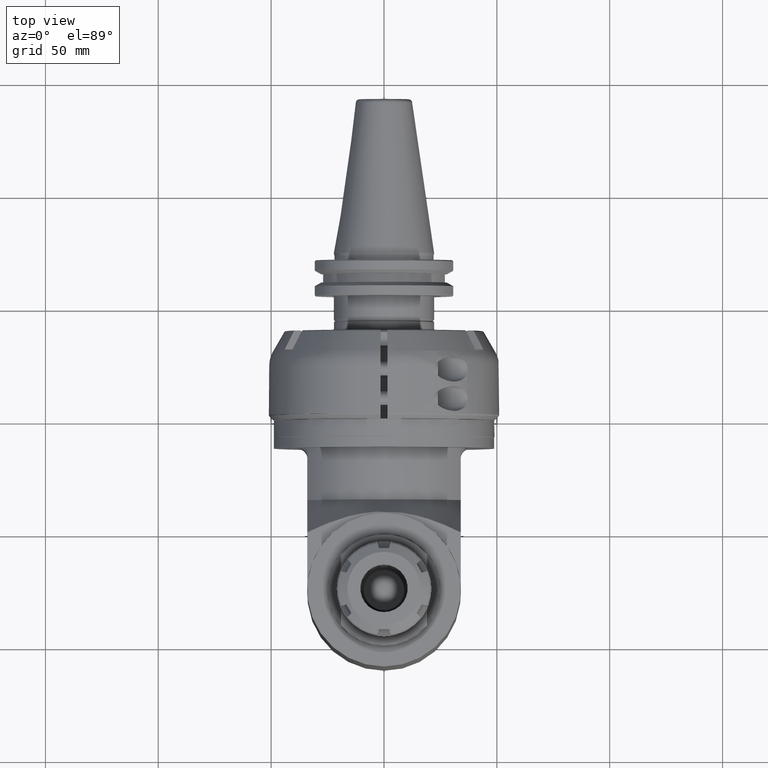
[diagram: clean part render]
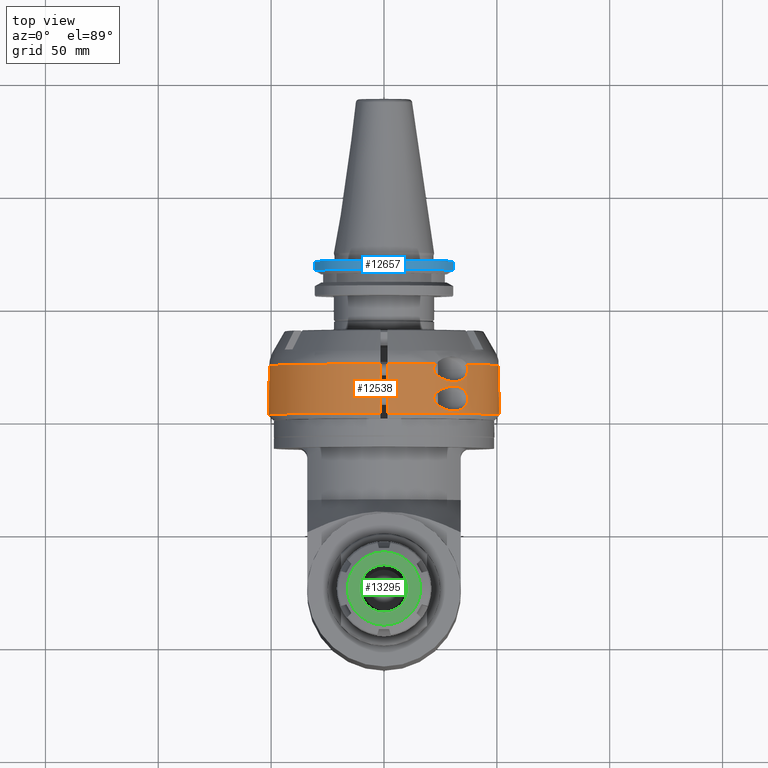
[diagram: same view with three faces highlighted in distinct colors, each labeled with its STEP entity id]
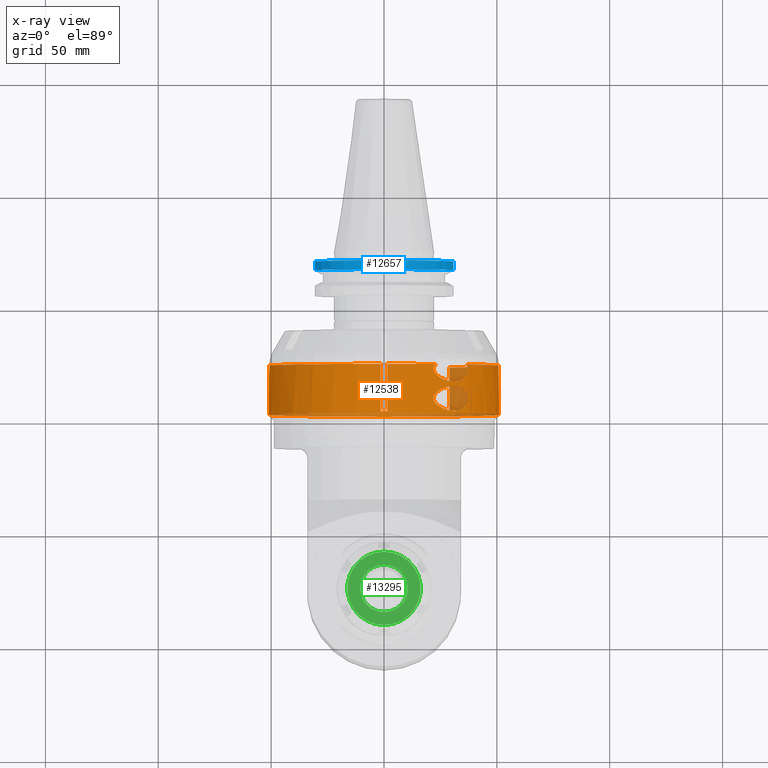
[diagram: x-ray of the same camera — body ghosted, the three highlighted faces saturated]
A machine part, top view with three faces highlighted in distinct colors.
The next image is the same camera in x-ray (body ghosted, the three faces saturated) — at least one of them is partly hidden behind the body in this view.
Their STEP definitions:

[orange] entity #12538 — the highlighted cylindrical surface (partial cylindrical patch) has radius 51 mm, axis along (0, -1, 0).
#115=ELLIPSE('',#13457,144.249783362042,51.);
#116=ELLIPSE('',#13458,144.249783362042,51.);
#207=FACE_BOUND('',#2037,.T.);
#500=B_SPLINE_CURVE_WITH_KNOTS('',3,(#19334,#19335,#19336,#19337,#19338,
#19339),.UNSPECIFIED.,.F.,.F.,(4,2,4),(-0.220144328873593,-0.201175489980687,
0.),.UNSPECIFIED.);
#501=B_SPLINE_CURVE_WITH_KNOTS('',3,(#19340,#19341,#19342,#19343,#19344,
#19345,#19346,#19347,#19348,#19349,#19350,#19351,#19352,#19353,#19354,#19355,
#19356,#19357,#19358,#19359,#19360,#19361,#19362,#19363,#19364,#19365),
 .UNSPECIFIED.,.F.,.F.,(4,2,2,2,2,2,2,2,2,2,2,2,4),(0.,0.201175489980687,
0.402350979961374,0.726790310303929,1.05122964064648,1.44743687444551,1.84364410824453,
2.06341028648597,2.17329337560669,2.28317646472742,2.39305955384814,2.50294264296886,
2.52975105249028),.UNSPECIFIED.);
#502=B_SPLINE_CURVE_WITH_KNOTS('',3,(#19369,#19370,#19371,#19372,#19373,
#19374,#19375,#19376,#19377,#19378,#19379,#19380,#19381,#19382,#19383,#19384,
#19385,#19386,#19387,#19388,#19389,#19390,#19391),.UNSPECIFIED.,.F.,.F.,
(4,2,2,2,2,3,2,2,2,2,4),(-1.23194682408093,-0.835739590281914,-0.439532356482893,
-0.219766178241447,-0.109883089120723,0.,0.109883089120723,0.219766178241446,
0.439532356482894,0.835739590281914,1.23194682408093),.UNSPECIFIED.);
#503=B_SPLINE_CURVE_WITH_KNOTS('',3,(#19392,#19393,#19394,#19395,#19396,
#19397,#19398,#19399,#19400,#19401,#19402,#19403,#19404,#19405,#19406,#19407,
#19408,#19409),.UNSPECIFIED.,.F.,.F.,(4,2,2,2,2,2,2,2,4),(1.23194682408093,
1.55638615442349,1.88082548476604,2.08200097474673,2.28317646472742,2.4843519547081,
2.68552744468879,3.00996677503135,3.3344061053739),.UNSPECIFIED.);
#996=CYLINDRICAL_SURFACE('',#13455,51.);
#1228=FACE_OUTER_BOUND('',#2036,.T.);
#2036=EDGE_LOOP('',(#8654,#8655,#8656,#8657,#8658,#8659,#8660,#8661,#8662,
#8663,#8664,#8665,#8666,#8667));
#2037=EDGE_LOOP('',(#8668,#8669));
#2987=CIRCLE('',#13453,51.);
#2988=CIRCLE('',#13454,51.);
#2989=CIRCLE('',#13456,51.);
#2990=CIRCLE('',#13459,51.);
#2991=CIRCLE('',#13460,51.);
#2992=CIRCLE('',#13461,51.);
#3722=LINE('',#19060,#4545);
#3724=LINE('',#19064,#4547);
#3741=LINE('',#19330,#4564);
#3742=LINE('',#19366,#4565);
#4545=VECTOR('',#15022,19.16025403784);
#4547=VECTOR('',#15024,19.16025403784);
#4564=VECTOR('',#15139,21.74606325158);
#4565=VECTOR('',#15144,21.74606856517);
#5373=VERTEX_POINT('',#19046);
#5374=VERTEX_POINT('',#19059);
#5375=VERTEX_POINT('',#19061);
#5376=VERTEX_POINT('',#19063);
#5419=VERTEX_POINT('',#19286);
#5420=VERTEX_POINT('',#19295);
#5421=VERTEX_POINT('',#19297);
#5422=VERTEX_POINT('',#19320);
#5423=VERTEX_POINT('',#19321);
#5424=VERTEX_POINT('',#19323);
#5425=VERTEX_POINT('',#19325);
#5426=VERTEX_POINT('',#19327);
#5427=VERTEX_POINT('',#19329);
#5428=VERTEX_POINT('',#19333);
#5429=VERTEX_POINT('',#19367);
#5430=VERTEX_POINT('',#19368);
#6639=EDGE_CURVE('',#5374,#5373,#3722,.T.);
#6641=EDGE_CURVE('',#5376,#5375,#3724,.T.);
#6700=EDGE_CURVE('',#5419,#5420,#2987,.T.);
#6702=EDGE_CURVE('',#5421,#5373,#2988,.T.);
#6703=EDGE_CURVE('',#5422,#5423,#2989,.T.);
#6704=EDGE_CURVE('',#5424,#5422,#115,.T.);
#6705=EDGE_CURVE('',#5425,#5424,#116,.T.);
#6706=EDGE_CURVE('',#5426,#5425,#2990,.T.);
#6707=EDGE_CURVE('',#5426,#5427,#3741,.T.);
#6708=EDGE_CURVE('',#5376,#5427,#2991,.T.);
#6709=EDGE_CURVE('',#5374,#5375,#2992,.T.);
#6710=EDGE_CURVE('',#5421,#5428,#500,.T.);
#6711=EDGE_CURVE('',#5428,#5420,#501,.T.);
#6712=EDGE_CURVE('',#5419,#5423,#3742,.T.);
#6713=EDGE_CURVE('',#5429,#5430,#502,.T.);
#6714=EDGE_CURVE('',#5430,#5429,#503,.T.);
#8654=ORIENTED_EDGE('',*,*,#6703,.F.);
#8655=ORIENTED_EDGE('',*,*,#6704,.F.);
#8656=ORIENTED_EDGE('',*,*,#6705,.F.);
#8657=ORIENTED_EDGE('',*,*,#6706,.F.);
#8658=ORIENTED_EDGE('',*,*,#6707,.T.);
#8659=ORIENTED_EDGE('',*,*,#6708,.F.);
#8660=ORIENTED_EDGE('',*,*,#6641,.T.);
#8661=ORIENTED_EDGE('',*,*,#6709,.F.);
#8662=ORIENTED_EDGE('',*,*,#6639,.T.);
#8663=ORIENTED_EDGE('',*,*,#6702,.F.);
#8664=ORIENTED_EDGE('',*,*,#6710,.T.);
#8665=ORIENTED_EDGE('',*,*,#6711,.T.);
#8666=ORIENTED_EDGE('',*,*,#6700,.F.);
#8667=ORIENTED_EDGE('',*,*,#6712,.T.);
#8668=ORIENTED_EDGE('',*,*,#6713,.T.);
#8669=ORIENTED_EDGE('',*,*,#6714,.T.);
#12538=ADVANCED_FACE('',(#1228,#207),#996,.T.);
#13453=AXIS2_PLACEMENT_3D('',#19296,#15125,#15126);
#13454=AXIS2_PLACEMENT_3D('',#19318,#15127,#15128);
#13455=AXIS2_PLACEMENT_3D('',#19319,#15129,#15130);
#13456=AXIS2_PLACEMENT_3D('',#19322,#15131,#15132);
#13457=AXIS2_PLACEMENT_3D('',#19324,#15133,#15134);
#13458=AXIS2_PLACEMENT_3D('',#19326,#15135,#15136);
#13459=AXIS2_PLACEMENT_3D('',#19328,#15137,#15138);
#13460=AXIS2_PLACEMENT_3D('',#19331,#15140,#15141);
#13461=AXIS2_PLACEMENT_3D('',#19332,#15142,#15143);
#15022=DIRECTION('',(0.,1.,0.));
#15024=DIRECTION('',(0.,-1.,0.));
#15125=DIRECTION('center_axis',(0.,1.,0.));
#15126=DIRECTION('ref_axis',(0.0294117647058804,0.,0.999567380468613));
#15127=DIRECTION('center_axis',(0.,1.,0.));
#15128=DIRECTION('ref_axis',(0.719066469693323,0.,0.694941301235422));
#15129=DIRECTION('center_axis',(0.,-1.,0.));
#15130=DIRECTION('ref_axis',(1.4663926773559E-10,0.,-1.));
#15131=DIRECTION('center_axis',(0.,-1.,0.));
#15132=DIRECTION('ref_axis',(0.999826388474475,0.,0.0186331132687895));
#15133=DIRECTION('center_axis',(0.612372435695813,-0.353553390593307,-0.707106781186515));
#15134=DIRECTION('ref_axis',(-0.23145502494317,-0.935414346693472,0.267261241912441));
#15135=DIRECTION('center_axis',(0.612372435695813,-0.353553390593307,0.707106781186515));
#15136=DIRECTION('ref_axis',(0.23145502494317,0.935414346693472,0.267261241912441));
#15137=DIRECTION('center_axis',(0.,-1.,0.));
#15138=DIRECTION('ref_axis',(0.,0.,-1.));
#15139=DIRECTION('',(4.970251645951E-10,1.,1.462479987387E-11));
#15140=DIRECTION('center_axis',(0.,1.,0.));
#15141=DIRECTION('ref_axis',(-0.567273574176089,0.,-0.823529411764684));
#15142=DIRECTION('center_axis',(0.,1.,0.));
#15143=DIRECTION('ref_axis',(0.,0.,-1.));
#15144=DIRECTION('',(1.273469652131E-9,-1.,-3.747115976057E-11));
#19046=CARTESIAN_POINT('',(28.93095228298,24.16025403784,-42.));
#19059=CARTESIAN_POINT('',(28.93095228298,5.,-42.));
#19060=CARTESIAN_POINT('',(28.93095228298,5.,-42.));
#19061=CARTESIAN_POINT('',(-28.93095228298,5.,-42.));
#19063=CARTESIAN_POINT('',(-28.93095228298,24.16025403784,-42.));
#19064=CARTESIAN_POINT('',(-28.93095228298,24.16025403784,-42.));
#19286=CARTESIAN_POINT('',(1.49999997309681,24.16025403784,50.9779364046901));
#19295=CARTESIAN_POINT('',(22.92311419183,24.16025403784,45.55799420242));
#19296=CARTESIAN_POINT('Origin',(0.,24.16025403784,0.));
#19297=CARTESIAN_POINT('',(36.67238995436,24.16025403784,35.44200636301));
#19318=CARTESIAN_POINT('Origin',(0.,24.16025403784,0.));
#19319=CARTESIAN_POINT('Origin',(0.,31.,0.));
#19320=CARTESIAN_POINT('',(50.9911458122,2.41421356236,0.9502887767138));
#19321=CARTESIAN_POINT('',(1.49999998660699,2.41421355534875,50.9779364042926));
#19322=CARTESIAN_POINT('Origin',(0.,2.41421356237,0.));
#19323=CARTESIAN_POINT('',(51.,4.33012701892,0.));
#19324=CARTESIAN_POINT('Origin',(0.,-84.0044641670873,0.));
#19325=CARTESIAN_POINT('',(50.9911458122,2.41421356237,-0.9502887767115));
#19326=CARTESIAN_POINT('Origin',(0.,-84.0044641670895,0.));
#19327=CARTESIAN_POINT('',(-1.49999998564002,2.41421355484347,50.9779364043204));
#19328=CARTESIAN_POINT('Origin',(0.,2.41421356237,0.));
#19329=CARTESIAN_POINT('',(-1.49999998023586,24.1602540534303,50.9779364044794));
#19330=CARTESIAN_POINT('',(-1.49999997128,2.41420614677,50.97793640474));
#19331=CARTESIAN_POINT('Origin',(0.,24.16025403784,0.));
#19332=CARTESIAN_POINT('Origin',(0.,5.,0.));
#19333=CARTESIAN_POINT('',(37.094473715245,22.,35.0000002827));
#19334=CARTESIAN_POINT('Ctrl Pts',(36.672389954383,24.1602540378615,35.4420063629821));
#19335=CARTESIAN_POINT('Ctrl Pts',(36.6960098703128,24.1030307589119,35.4175664721138));
#19336=CARTESIAN_POINT('Ctrl Pts',(36.7187524665262,24.0451285760376,35.3939854762316));
#19337=CARTESIAN_POINT('Ctrl Pts',(36.9720249281091,23.365962882206,35.1309085087689));
#19338=CARTESIAN_POINT('Ctrl Pts',(37.094473715245,22.6705849666023,35.0000002827));
#19339=CARTESIAN_POINT('Ctrl Pts',(37.094473715245,22.,35.0000002827));
#19340=CARTESIAN_POINT('Ctrl Pts',(37.094473715245,22.,35.0000002827));
#19341=CARTESIAN_POINT('Ctrl Pts',(37.094473715245,21.3294150333977,35.0000002827));
#19342=CARTESIAN_POINT('Ctrl Pts',(36.9720249281091,20.634037117794,35.1309085087689));
#19343=CARTESIAN_POINT('Ctrl Pts',(36.509126684777,19.3927469884163,35.611726144206));
#19344=CARTESIAN_POINT('Ctrl Pts',(36.1687494919773,18.8460087579151,35.9595700839234));
#19345=CARTESIAN_POINT('Ctrl Pts',(35.2033968586434,17.735791859391,36.9109847334653));
#19346=CARTESIAN_POINT('Ctrl Pts',(34.4409934800641,17.2408985110096,37.6305186458188));
#19347=CARTESIAN_POINT('Ctrl Pts',(32.7670730175023,16.6228361137413,39.0967633186736));
#19348=CARTESIAN_POINT('Ctrl Pts',(31.8547771083538,16.5,39.8427250661917));
#19349=CARTESIAN_POINT('Ctrl Pts',(29.9471832487812,16.5,41.3026686740521));
#19350=CARTESIAN_POINT('Ctrl Pts',(28.778013547493,16.6813594560049,42.1275628033903));
#19351=CARTESIAN_POINT('Ctrl Pts',(26.456979520871,17.3971650946717,43.6226298537565));
#19352=CARTESIAN_POINT('Ctrl Pts',(25.3037695427295,17.923954492565,44.2943690865695));
#19353=CARTESIAN_POINT('Ctrl Pts',(23.7624895598246,18.9924338611569,45.1302050030023));
#19354=CARTESIAN_POINT('Ctrl Pts',(23.1928172782629,19.474810450432,45.4238805293447));
#19355=CARTESIAN_POINT('Ctrl Pts',(22.5411184273514,20.3289480905375,45.7488459255632));
#19356=CARTESIAN_POINT('Ctrl Pts',(22.3578474169696,20.6350884897769,45.8382767855729));
#19357=CARTESIAN_POINT('Ctrl Pts',(22.0986788135919,21.2875037271628,45.9637780827712));
#19358=CARTESIAN_POINT('Ctrl Pts',(22.0227149550549,21.6337230362643,46.0000002827));
#19359=CARTESIAN_POINT('Ctrl Pts',(22.0227149550549,22.3662769637357,46.0000002827));
#19360=CARTESIAN_POINT('Ctrl Pts',(22.0986788135919,22.7124962728372,45.9637780827712));
#19361=CARTESIAN_POINT('Ctrl Pts',(22.3578474169696,23.3649115102231,45.8382767855729));
#19362=CARTESIAN_POINT('Ctrl Pts',(22.5411184273514,23.6710519094625,45.7488459255632));
#19363=CARTESIAN_POINT('Ctrl Pts',(22.8113501597235,24.0252263780027,45.6140966286168));
#19364=CARTESIAN_POINT('Ctrl Pts',(22.8663661688419,24.0933991389679,45.5865477292858));
#19365=CARTESIAN_POINT('Ctrl Pts',(22.9231141918306,24.1602540378421,45.5579942024262));
#19366=CARTESIAN_POINT('',(1.499999945521,24.16027520978,50.9779364055));
#19367=CARTESIAN_POINT('',(30.99596711028,3.5,40.5000002827));
#19368=CARTESIAN_POINT('',(30.9959671102758,14.5,40.5000002827));
#19369=CARTESIAN_POINT('Ctrl Pts',(30.9959671102758,3.5,40.5000002827));
#19370=CARTESIAN_POINT('Ctrl Pts',(29.9471832487812,3.5,41.3026686740521));
#19371=CARTESIAN_POINT('Ctrl Pts',(28.778013547493,3.68135945600488,42.1275628033903));
#19372=CARTESIAN_POINT('Ctrl Pts',(26.456979520871,4.39716509467172,43.6226298537565));
#19373=CARTESIAN_POINT('Ctrl Pts',(25.3037695427295,4.92395449256504,44.2943690865695));
#19374=CARTESIAN_POINT('Ctrl Pts',(23.7624895598246,5.99243386115685,45.1302050030023));
#19375=CARTESIAN_POINT('Ctrl Pts',(23.1928172782629,6.47481045043198,45.4238805293447));
#19376=CARTESIAN_POINT('Ctrl Pts',(22.5411184273514,7.32894809053751,45.7488459255632));
#19377=CARTESIAN_POINT('Ctrl Pts',(22.3578474169696,7.63508848977687,45.8382767855729));
#19378=CARTESIAN_POINT('Ctrl Pts',(22.0986788135919,8.28750372716277,45.9637780827712));
#19379=CARTESIAN_POINT('Ctrl Pts',(22.0227149550549,8.63372303626425,46.0000002827));
#19380=CARTESIAN_POINT('Ctrl Pts',(22.0227149550549,9.,46.0000002827));
#19381=CARTESIAN_POINT('Ctrl Pts',(22.0227149550549,9.36627696373574,46.0000002827));
#19382=CARTESIAN_POINT('Ctrl Pts',(22.0986788135919,9.71249627283722,45.9637780827712));
#19383=CARTESIAN_POINT('Ctrl Pts',(22.3578474169696,10.3649115102231,45.8382767855729));
#19384=CARTESIAN_POINT('Ctrl Pts',(22.5411184273515,10.6710519094625,45.7488459255632));
#19385=CARTESIAN_POINT('Ctrl Pts',(23.1928172782629,11.525189549568,45.4238805293447));
#19386=CARTESIAN_POINT('Ctrl Pts',(23.7624895598246,12.0075661388431,45.1302050030023));
#19387=CARTESIAN_POINT('Ctrl Pts',(25.3037695427295,13.076045507435,44.2943690865695));
#19388=CARTESIAN_POINT('Ctrl Pts',(26.456979520871,13.6028349053283,43.6226298537565));
#19389=CARTESIAN_POINT('Ctrl Pts',(28.778013547493,14.3186405439951,42.1275628033903));
#19390=CARTESIAN_POINT('Ctrl Pts',(29.9471832487812,14.5,41.3026686740521));
#19391=CARTESIAN_POINT('Ctrl Pts',(30.9959671102758,14.5,40.5000002827));
#19392=CARTESIAN_POINT('Ctrl Pts',(30.9959671102758,14.5,40.5000002827));
#19393=CARTESIAN_POINT('Ctrl Pts',(31.8547771083538,14.5,39.8427250661917));
#19394=CARTESIAN_POINT('Ctrl Pts',(32.7670730175023,14.3771638862587,39.0967633186736));
#19395=CARTESIAN_POINT('Ctrl Pts',(34.4409934800641,13.7591014889904,37.6305186458188));
#19396=CARTESIAN_POINT('Ctrl Pts',(35.2033968586434,13.264208140609,36.9109847334653));
#19397=CARTESIAN_POINT('Ctrl Pts',(36.1687494919773,12.153991242085,35.9595700839234));
#19398=CARTESIAN_POINT('Ctrl Pts',(36.509126684777,11.6072530115837,35.611726144206));
#19399=CARTESIAN_POINT('Ctrl Pts',(36.9720249281091,10.365962882206,35.1309085087689));
#19400=CARTESIAN_POINT('Ctrl Pts',(37.094473715245,9.67058496660229,35.0000002827));
#19401=CARTESIAN_POINT('Ctrl Pts',(37.094473715245,8.32941503339771,35.0000002827));
#19402=CARTESIAN_POINT('Ctrl Pts',(36.9720249281091,7.634037117794,35.1309085087689));
#19403=CARTESIAN_POINT('Ctrl Pts',(36.509126684777,6.39274698841629,35.611726144206));
#19404=CARTESIAN_POINT('Ctrl Pts',(36.1687494919773,5.84600875791506,35.9595700839234));
#19405=CARTESIAN_POINT('Ctrl Pts',(35.2033968586434,4.73579185939097,36.9109847334653));
#19406=CARTESIAN_POINT('Ctrl Pts',(34.4409934800641,4.2408985110096,37.6305186458188));
#19407=CARTESIAN_POINT('Ctrl Pts',(32.7670730175023,3.6228361137413,39.0967633186736));
#19408=CARTESIAN_POINT('Ctrl Pts',(31.8547771083538,3.5,39.8427250661916));
#19409=CARTESIAN_POINT('Ctrl Pts',(30.9959671102758,3.5,40.5000002827));

[blue] entity #12657 — the highlighted cylindrical surface (partial cylindrical patch) has radius 31.75 mm, axis along (0, -1, 0).
#1028=CYLINDRICAL_SURFACE('',#13680,31.75);
#1347=FACE_OUTER_BOUND('',#2173,.T.);
#2173=EDGE_LOOP('',(#9255,#9256,#9257,#9258));
#3092=CIRCLE('',#13679,31.75);
#3093=CIRCLE('',#13681,31.75);
#3865=LINE('',#20206,#4688);
#3871=LINE('',#20244,#4694);
#4688=VECTOR('',#15681,3.93332990993502);
#4694=VECTOR('',#15695,3.93332990956502);
#5600=VERTEX_POINT('',#20194);
#5601=VERTEX_POINT('',#20205);
#5608=VERTEX_POINT('',#20232);
#5609=VERTEX_POINT('',#20243);
#6974=EDGE_CURVE('',#5601,#5600,#3865,.T.);
#6984=EDGE_CURVE('',#5609,#5608,#3871,.T.);
#6991=EDGE_CURVE('',#5609,#5600,#3092,.T.);
#6992=EDGE_CURVE('',#5601,#5608,#3093,.T.);
#9255=ORIENTED_EDGE('',*,*,#6984,.T.);
#9256=ORIENTED_EDGE('',*,*,#6992,.F.);
#9257=ORIENTED_EDGE('',*,*,#6974,.T.);
#9258=ORIENTED_EDGE('',*,*,#6991,.F.);
#12657=ADVANCED_FACE('',(#1347),#1028,.T.);
#13679=AXIS2_PLACEMENT_3D('',#20284,#15709,#15710);
#13680=AXIS2_PLACEMENT_3D('',#20285,#15711,#15712);
#13681=AXIS2_PLACEMENT_3D('',#20286,#15713,#15714);
#15681=DIRECTION('',(2.52357405636099E-8,0.999999999999995,-9.45014715626196E-8));
#15695=DIRECTION('',(2.52385658790599E-8,-0.999999999999995,9.45120561083395E-8));
#15709=DIRECTION('center_axis',(0.,1.,0.));
#15710=DIRECTION('ref_axis',(-0.96614491666623,0.,0.258000000000008));
#15711=DIRECTION('center_axis',(0.,-1.,0.));
#15712=DIRECTION('ref_axis',(1.,0.,0.));
#15713=DIRECTION('center_axis',(0.,-1.,0.));
#15714=DIRECTION('ref_axis',(0.96614491666623,0.,0.258000000000008));
#20194=CARTESIAN_POINT('',(30.67510110415,70.325,8.1915));
#20205=CARTESIAN_POINT('',(30.6751009778148,66.3916667879604,8.19150055390068));
#20206=CARTESIAN_POINT('',(30.67510100489,66.39167009006,8.191500371705));
#20232=CARTESIAN_POINT('',(-30.6751009773954,66.3916667873843,8.19150055412788));
#20243=CARTESIAN_POINT('',(-30.67510110415,70.325,8.1915));
#20244=CARTESIAN_POINT('',(-30.67510110415,70.325,8.1915));
#20284=CARTESIAN_POINT('Origin',(0.,70.325,0.));
#20285=CARTESIAN_POINT('Origin',(0.,62.8875,0.));
#20286=CARTESIAN_POINT('Origin',(0.,66.39166676908,0.));

[green] entity #13295 — the highlighted planar face has unit normal (0, -0, 1).
#334=FACE_BOUND('',#2921,.T.);
#979=PLANE('',#14943);
#1985=FACE_OUTER_BOUND('',#2920,.T.);
#2920=EDGE_LOOP('',(#12261));
#2921=EDGE_LOOP('',(#12262));
#3693=CIRCLE('',#14942,16.25);
#3694=CIRCLE('',#14944,10.5);
#6603=VERTEX_POINT('',#54080);
#6604=VERTEX_POINT('',#54084);
#8503=EDGE_CURVE('',#6603,#6603,#3693,.T.);
#8504=EDGE_CURVE('',#6604,#6604,#3694,.T.);
#12261=ORIENTED_EDGE('',*,*,#8503,.T.);
#12262=ORIENTED_EDGE('',*,*,#8504,.T.);
#13295=ADVANCED_FACE('',(#1985,#334),#979,.T.);
#14942=AXIS2_PLACEMENT_3D('',#54082,#18886,#18887);
#14943=AXIS2_PLACEMENT_3D('',#54083,#18888,#18889);
#14944=AXIS2_PLACEMENT_3D('',#54085,#18890,#18891);
#18886=DIRECTION('center_axis',(1.,0.,0.));
#18887=DIRECTION('ref_axis',(0.,-1.,0.));
#18888=DIRECTION('center_axis',(1.,0.,0.));
#18889=DIRECTION('ref_axis',(0.,1.,0.));
#18890=DIRECTION('center_axis',(-1.,0.,0.));
#18891=DIRECTION('ref_axis',(0.,1.,0.));
#54080=CARTESIAN_POINT('',(77.1600417879194,-6.75000000000033,1.14810637420056E-14));
#54082=CARTESIAN_POINT('Origin',(77.16004178792,-23.,1.347111479062E-14));
#54083=CARTESIAN_POINT('Origin',(77.16004178792,-33.5,1.347111479062E-14));
#54084=CARTESIAN_POINT('',(77.16004178792,-33.5,1.475699392973E-14));
#54085=CARTESIAN_POINT('Origin',(77.16004178792,-23.,1.347111479062E-14));